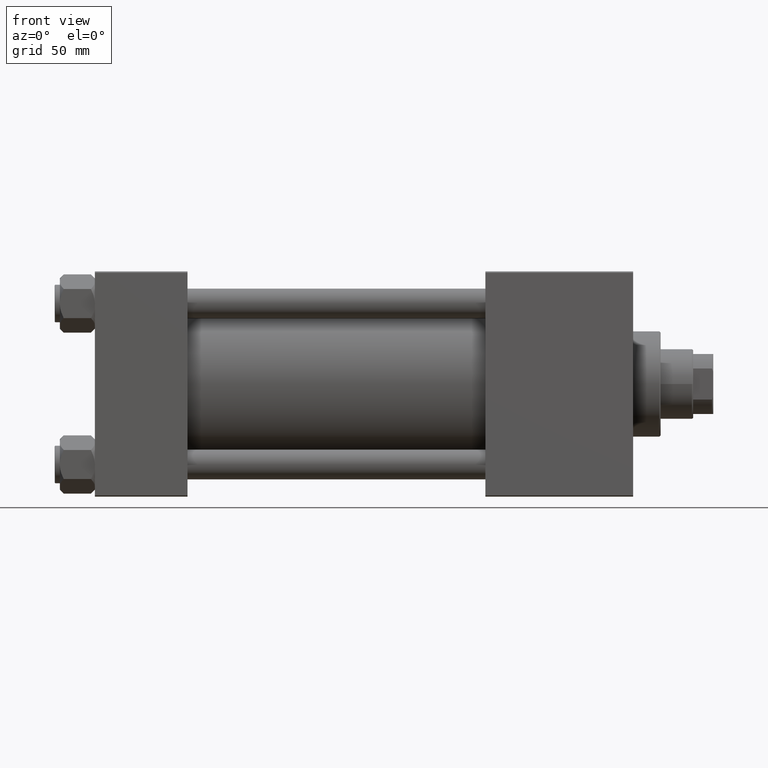
[diagram: clean part render]
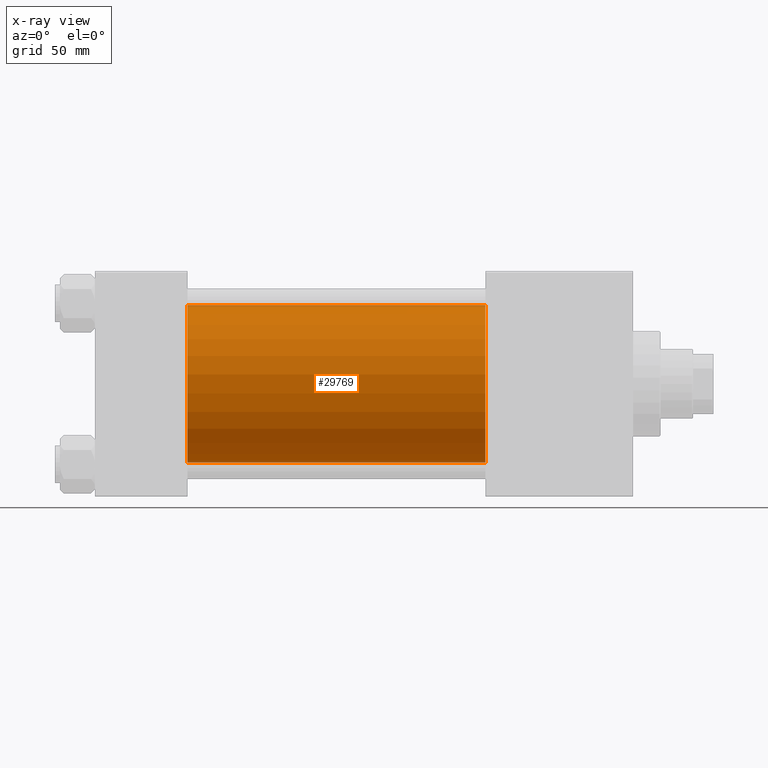
[diagram: x-ray — body ghosted, one internal face saturated and labeled with its STEP entity id]
A machine part, front view, then the same camera in x-ray: the body is ghosted and one INTERNAL B-rep face — a face not visible from any outside direction — is saturated and labeled: STEP entity #29769.
In plain terms, the highlighted cylindrical surface (partial cylindrical patch) has radius 31.5 mm, axis along (-1, -0, -0).
Its self-contained STEP definition (entity closure, byte-faithful):
#5214 = ORIENTED_EDGE ( 'NONE', *, *, #13078, .F. ) ;
#5469 = CIRCLE ( 'NONE', #19611, 31.50000000000000000 ) ;
#5647 = EDGE_CURVE ( 'NONE', #20552, #23976, #43576, .T. ) ;
#8545 = VECTOR ( 'NONE', #41094, 1000.000000000000000 ) ;
#11362 = CIRCLE ( 'NONE', #47051, 31.50000000000000000 ) ;
#11873 = CARTESIAN_POINT ( 'NONE',  ( 156.0000000000000000, 1.255552203348951850E-15, -31.50000000000000000 ) ) ;
#12571 = CARTESIAN_POINT ( 'NONE',  ( 156.0000000000000000, -2.602085213965210642E-15, 31.50000000000000000 ) ) ;
#12724 = DIRECTION ( 'NONE',  ( 0.000000000000000000, 0.000000000000000000, 1.000000000000000000 ) ) ;
#13078 = EDGE_CURVE ( 'NONE', #34154, #25475, #48879, .T. ) ;
#13442 = VECTOR ( 'NONE', #43053, 1000.000000000000000 ) ;
#17082 = ORIENTED_EDGE ( 'NONE', *, *, #25597, .F. ) ;
#17369 = ORIENTED_EDGE ( 'NONE', *, *, #27597, .T. ) ;
#17645 = CARTESIAN_POINT ( 'NONE',  ( 156.0000000000000000, -2.602085213965210642E-15, 0.000000000000000000 ) ) ;
#17874 = ORIENTED_EDGE ( 'NONE', *, *, #5647, .T. ) ;
#19611 = AXIS2_PLACEMENT_3D ( 'NONE', #21173, #25316, #40673 ) ;
#19874 = CARTESIAN_POINT ( 'NONE',  ( 37.00000000000000000, -2.602085213965210642E-15, 31.50000000000000000 ) ) ;
#20552 = VERTEX_POINT ( 'NONE', #26078 ) ;
#21173 = CARTESIAN_POINT ( 'NONE',  ( 37.00000000000000000, -2.602085213965210642E-15, 0.000000000000000000 ) ) ;
#21285 = DIRECTION ( 'NONE',  ( -1.000000000000000000, -0.000000000000000000, -0.000000000000000000 ) ) ;
#23976 = VERTEX_POINT ( 'NONE', #34613 ) ;
#25316 = DIRECTION ( 'NONE',  ( 1.000000000000000000, 0.000000000000000000, 0.000000000000000000 ) ) ;
#25475 = VERTEX_POINT ( 'NONE', #19874 ) ;
#25597 = EDGE_CURVE ( 'NONE', #25475, #23976, #5469, .T. ) ;
#26078 = CARTESIAN_POINT ( 'NONE',  ( 156.0000000000000000, 1.255552203348951850E-15, -31.50000000000000000 ) ) ;
#27597 = EDGE_CURVE ( 'NONE', #34154, #20552, #11362, .T. ) ;
#29769 = ADVANCED_FACE ( 'NONE', ( #45185 ), #37650, .F. ) ;
#34154 = VERTEX_POINT ( 'NONE', #12571 ) ;
#34613 = CARTESIAN_POINT ( 'NONE',  ( 37.00000000000000000, 1.255552203348951850E-15, -31.50000000000000000 ) ) ;
#36030 = DIRECTION ( 'NONE',  ( 1.000000000000000000, 0.000000000000000000, 0.000000000000000000 ) ) ;
#36342 = AXIS2_PLACEMENT_3D ( 'NONE', #17645, #21285, #12724 ) ;
#37650 = CYLINDRICAL_SURFACE ( 'NONE', #36342, 31.50000000000000000 ) ;
#40449 = CARTESIAN_POINT ( 'NONE',  ( 156.0000000000000000, -2.602085213965210642E-15, 0.000000000000000000 ) ) ;
#40673 = DIRECTION ( 'NONE',  ( 0.000000000000000000, 0.000000000000000000, -1.000000000000000000 ) ) ;
#41094 = DIRECTION ( 'NONE',  ( -1.000000000000000000, -0.000000000000000000, -0.000000000000000000 ) ) ;
#41588 = CARTESIAN_POINT ( 'NONE',  ( 156.0000000000000000, -2.602085213965210642E-15, 31.50000000000000000 ) ) ;
#43053 = DIRECTION ( 'NONE',  ( -1.000000000000000000, -0.000000000000000000, -0.000000000000000000 ) ) ;
#43576 = LINE ( 'NONE', #11873, #13442 ) ;
#45185 = FACE_OUTER_BOUND ( 'NONE', #51156, .T. ) ;
#47051 = AXIS2_PLACEMENT_3D ( 'NONE', #40449, #36030, #47978 ) ;
#47978 = DIRECTION ( 'NONE',  ( 0.000000000000000000, 0.000000000000000000, -1.000000000000000000 ) ) ;
#48879 = LINE ( 'NONE', #41588, #8545 ) ;
#51156 = EDGE_LOOP ( 'NONE', ( #17369, #17874, #17082, #5214 ) ) ;